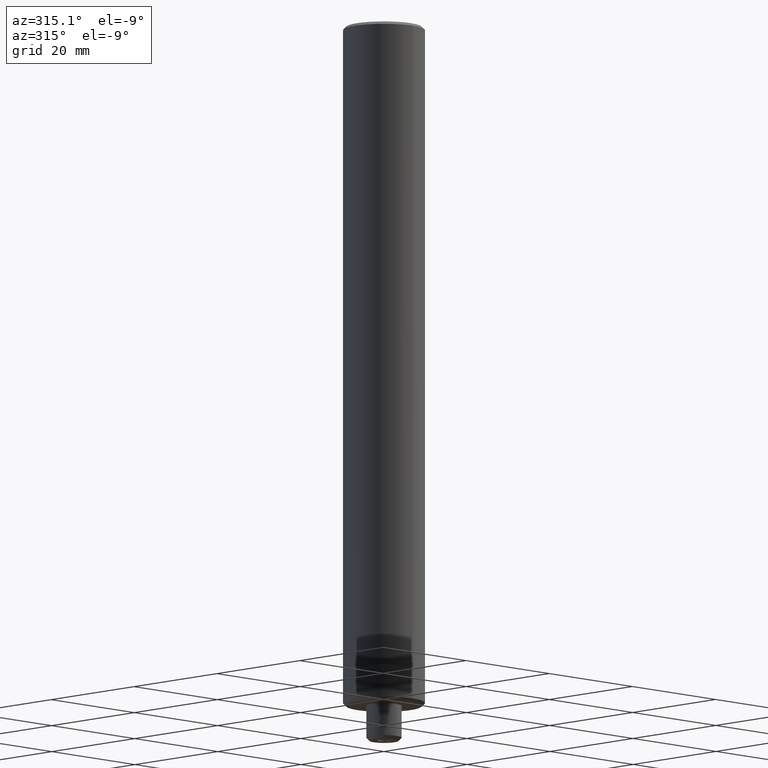
[diagram: clean part render]
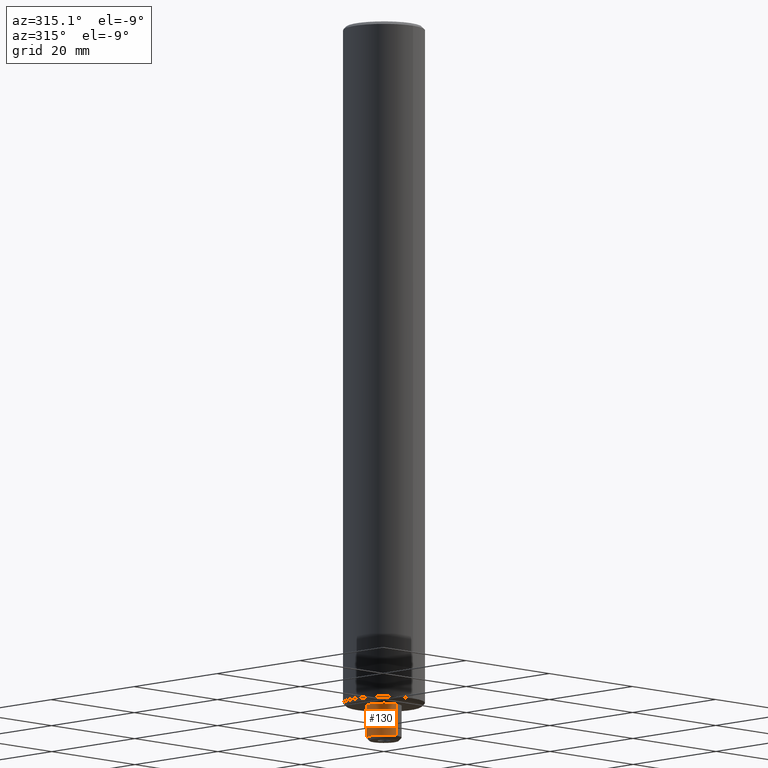
[diagram: same view with one face highlighted and labeled with its STEP entity id]
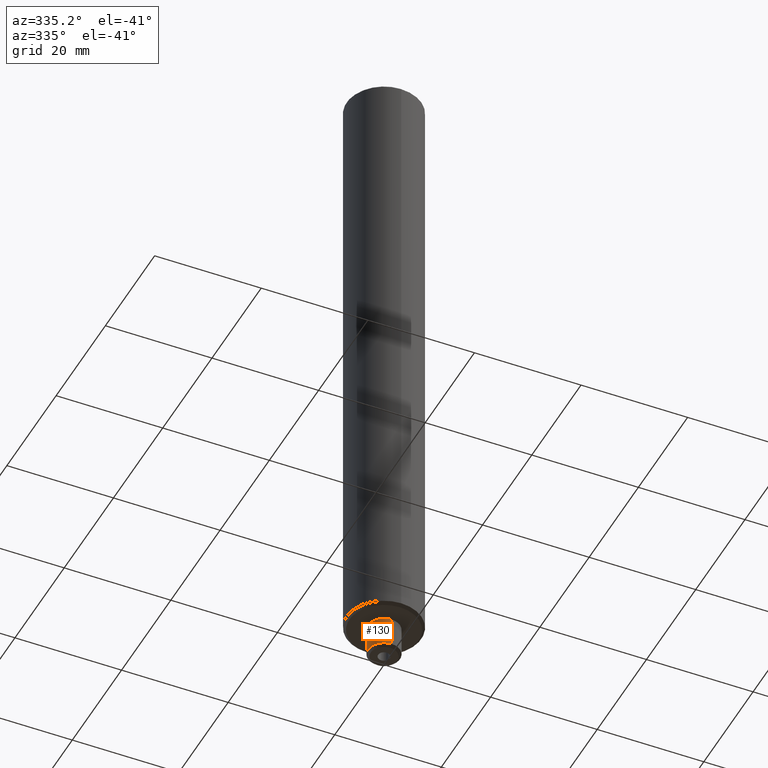
[diagram: same view with one face highlighted and labeled with its STEP entity id]
A machine part, auxiliary view. The second image highlights one B-rep face of the part: STEP entity #130.
A second angle (auxiliary view) of the same face is appended — the face is thin or edge-on in the first view.
In plain terms, the highlighted cylindrical surface (edge-blend (fillet) strip) has radius 3 mm, axis along (-0, -0, 1).
Its self-contained STEP definition (entity closure, byte-faithful):
#112=EDGE_CURVE('NONE',#154,#262,#288,.T.);
#126=EDGE_CURVE('NONE',#152,#230,#302,.T.);
#130=ADVANCED_FACE('NONE',(#306),#307,.T.);
#136=EDGE_CURVE('NONE',#230,#262,#315,.T.);
#152=VERTEX_POINT('NONE',#335);
#154=VERTEX_POINT('NONE',#337);
#210=EDGE_CURVE('NONE',#152,#154,#400,.T.);
#230=VERTEX_POINT('NONE',#423);
#262=VERTEX_POINT('NONE',#460);
#288=CIRCLE('',#479,3.0);
#302=CIRCLE('',#499,3.0);
#306=FACE_OUTER_BOUND('',#505,.T.);
#307=CYLINDRICAL_SURFACE('',#506,3.0);
#315=LINE('',#515,#516);
#335=CARTESIAN_POINT('',(0.0,3.0,-5.49999999999997));
#337=CARTESIAN_POINT('',(0.0,3.0,0.0));
#400=LINE('',#626,#627);
#423=CARTESIAN_POINT('',(-3.67381906146713E-016,-3.0,-5.49999999999997));
#460=CARTESIAN_POINT('',(-3.67381906146713E-016,-3.0,0.0));
#479=AXIS2_PLACEMENT_3D('',#709,#710,#711);
#499=AXIS2_PLACEMENT_3D('',#727,#728,#729);
#505=EDGE_LOOP('',(#732,#733,#734,#735));
#506=AXIS2_PLACEMENT_3D('',#736,#737,#738);
#515=CARTESIAN_POINT('',(-3.67381906146713E-016,-3.0,44.3839792060492));
#516=VECTOR('',#747,1000.0);
#626=CARTESIAN_POINT('',(0.0,3.0,44.3839792060492));
#627=VECTOR('',#864,1000.0);
#709=CARTESIAN_POINT('',(0.0,0.0,0.0));
#710=DIRECTION('',(0.0,-0.0,1.0));
#711=DIRECTION('',(0.0,1.0,0.0));
#727=CARTESIAN_POINT('',(0.0,0.0,-5.49999999999997));
#728=DIRECTION('',(0.0,-0.0,1.0));
#729=DIRECTION('',(0.0,1.0,0.0));
#732=ORIENTED_EDGE('',*,*,#126,.T.);
#733=ORIENTED_EDGE('',*,*,#136,.T.);
#734=ORIENTED_EDGE('',*,*,#112,.F.);
#735=ORIENTED_EDGE('',*,*,#210,.F.);
#736=CARTESIAN_POINT('',(0.0,0.0,44.3839792060492));
#737=DIRECTION('',(-0.0,-0.0,1.0));
#738=DIRECTION('',(0.0,1.0,0.0));
#747=DIRECTION('',(0.0,-0.0,1.0));
#864=DIRECTION('',(0.0,-0.0,1.0));